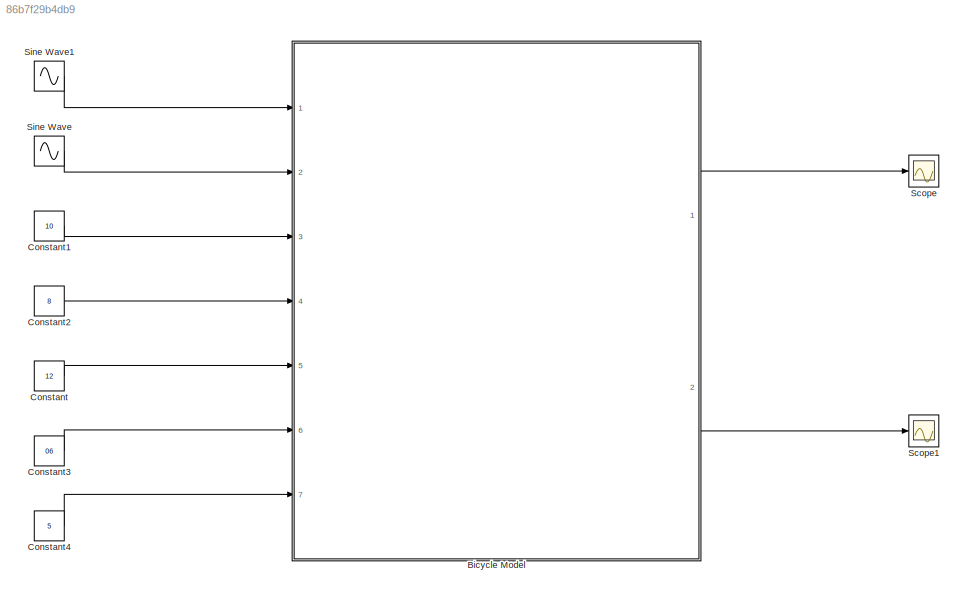
MODEL slx_86b7f29b4db9
KIND model
CONFIG AbsTol = auto
CONFIG FixedStep = 0.001
CONFIG MaxStep = auto
CONFIG MinStep = auto
CONFIG RelTol = 1e-3
CONFIG SampleTimeConstraint = Unconstrained
CONFIG Solver = FixedStepAuto
CONFIG SolverMode = Auto
CONFIG SolverName = FixedStepAuto
CONFIG StartTime = 0.0
CONFIG StopTime = 1
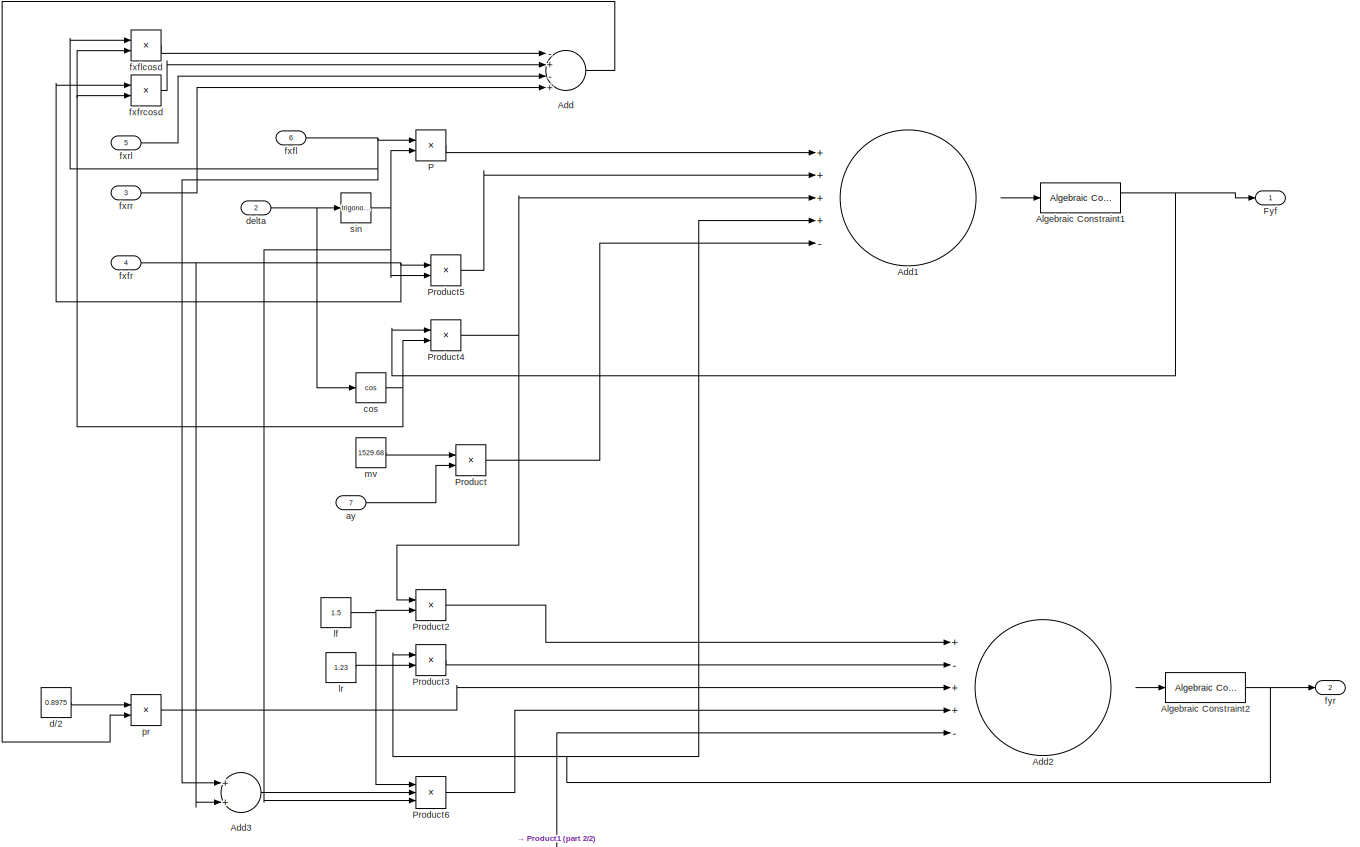
[diagram: Bicycle Model - part 1/2, most of the canvas]
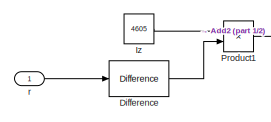
[diagram: Bicycle Model - part 2/2, bottom left region]
BLOCK [SubSystem] Bicycle Model
  Ports = [7, 2]
  RequestExecContextInheritance = off
  Variant = off
BLOCK [Sum] Bicycle Model/Add
  InputSameDT = off
  Inputs = -+-+
  OutDataTypeStr = Inherit: Inherit via internal rule
  Ports = [4, 1]
  SaturateOnIntegerOverflow = off
BLOCK [Sum] Bicycle Model/Add1
  InputSameDT = off
  Inputs = ++++-
  OutDataTypeStr = Inherit: Inherit via internal rule
  Ports = [5, 1]
  SaturateOnIntegerOverflow = off
BLOCK [Sum] Bicycle Model/Add2
  InputSameDT = off
  Inputs = +-++-
  OutDataTypeStr = Inherit: Inherit via internal rule
  Ports = [5, 1]
  SaturateOnIntegerOverflow = off
BLOCK [Sum] Bicycle Model/Add3
  InputSameDT = off
  OutDataTypeStr = Inherit: Inherit via internal rule
  Ports = [2, 1]
  SaturateOnIntegerOverflow = off
BLOCK [Reference] Bicycle Model/Algebraic Constraint1  REF=simulink/Math
Operations/Algebraic Constraint
  Ports = [1, 1]
  SourceBlock = simulink/Math\nOperations/Algebraic Constraint
  SourceType = Algebraic Constraint
BLOCK [Reference] Bicycle Model/Algebraic Constraint2  REF=simulink/Math
Operations/Algebraic Constraint
  Ports = [1, 1]
  SourceBlock = simulink/Math\nOperations/Algebraic Constraint
  SourceType = Algebraic Constraint
BLOCK [Reference] Bicycle Model/Difference  REF=simulink/Discrete/Difference
  Ports = [1, 1]
  SourceBlock = simulink/Discrete/Difference
  SourceType = Difference
BLOCK [Outport] Bicycle Model/Fyf
  IconDisplay = Port number
BLOCK [Constant] Bicycle Model/Iz
  Value = 4605
BLOCK [Product] Bicycle Model/P
  InputSameDT = off
  OutDataTypeStr = Inherit: Inherit via internal rule
  Ports = [2, 1]
  RndMeth = Floor
  SaturateOnIntegerOverflow = off
BLOCK [Product] Bicycle Model/Product
  InputSameDT = off
  OutDataTypeStr = Inherit: Inherit via internal rule
  Ports = [2, 1]
  RndMeth = Floor
  SaturateOnIntegerOverflow = off
BLOCK [Product] Bicycle Model/Product1
  InputSameDT = off
  OutDataTypeStr = Inherit: Inherit via internal rule
  Ports = [2, 1]
  RndMeth = Floor
  SaturateOnIntegerOverflow = off
BLOCK [Product] Bicycle Model/Product2
  InputSameDT = off
  OutDataTypeStr = Inherit: Inherit via internal rule
  Ports = [2, 1]
  RndMeth = Floor
  SaturateOnIntegerOverflow = off
BLOCK [Product] Bicycle Model/Product3
  InputSameDT = off
  OutDataTypeStr = Inherit: Inherit via internal rule
  Ports = [2, 1]
  RndMeth = Floor
  SaturateOnIntegerOverflow = off
BLOCK [Product] Bicycle Model/Product4
  InputSameDT = off
  OutDataTypeStr = Inherit: Inherit via internal rule
  Ports = [2, 1]
  RndMeth = Floor
  SaturateOnIntegerOverflow = off
BLOCK [Product] Bicycle Model/Product5
  InputSameDT = off
  OutDataTypeStr = Inherit: Inherit via internal rule
  Ports = [2, 1]
  RndMeth = Floor
  SaturateOnIntegerOverflow = off
BLOCK [Product] Bicycle Model/Product6
  InputSameDT = off
  Inputs = 3
  OutDataTypeStr = Inherit: Inherit via internal rule
  Ports = [3, 1]
  RndMeth = Floor
  SaturateOnIntegerOverflow = off
BLOCK [Inport] Bicycle Model/ay
  IconDisplay = Port number
  Port = 7
BLOCK [Trigonometry] Bicycle Model/cos
  Operator = cos
  Ports = [1, 1]
BLOCK [Constant] Bicycle Model/d//2
  Value = 0.8975
BLOCK [Inport] Bicycle Model/delta
  IconDisplay = Port number
  Port = 2
BLOCK [Inport] Bicycle Model/fxfl
  IconDisplay = Port number
  Port = 6
BLOCK [Product] Bicycle Model/fxflcosd
  InputSameDT = off
  OutDataTypeStr = Inherit: Inherit via internal rule
  Ports = [2, 1]
  RndMeth = Floor
  SaturateOnIntegerOverflow = off
BLOCK [Inport] Bicycle Model/fxfr
  IconDisplay = Port number
  Port = 4
BLOCK [Product] Bicycle Model/fxfrcosd
  InputSameDT = off
  OutDataTypeStr = Inherit: Inherit via internal rule
  Ports = [2, 1]
  RndMeth = Floor
  SaturateOnIntegerOverflow = off
BLOCK [Inport] Bicycle Model/fxrl
  IconDisplay = Port number
  Port = 5
BLOCK [Inport] Bicycle Model/fxrr
  IconDisplay = Port number
  Port = 3
BLOCK [Outport] Bicycle Model/fyr
  IconDisplay = Port number
  Port = 2
BLOCK [Constant] Bicycle Model/lf
  Value = 1.5
BLOCK [Constant] Bicycle Model/lr
  Value = 1.23
BLOCK [Constant] Bicycle Model/mv
  Value = 1529.68
BLOCK [Product] Bicycle Model/pr
  InputSameDT = off
  OutDataTypeStr = Inherit: Inherit via internal rule
  Ports = [2, 1]
  RndMeth = Floor
  SaturateOnIntegerOverflow = off
BLOCK [Inport] Bicycle Model/r
  IconDisplay = Port number
BLOCK [Trigonometry] Bicycle Model/sin
  Ports = [1, 1]
BLOCK [Constant] Constant
  Value = 12
BLOCK [Constant] Constant1
  Value = 10
BLOCK [Constant] Constant2
  Value = 8
BLOCK [Constant] Constant3
  Value = 06
BLOCK [Constant] Constant4
  Value = 5
BLOCK [Scope] Scope
  Ports = [1]
  ScopeSpecificationString = Simulink.scopes.TimeScopeBlockCfg('CurrentConfiguration', extmgr.ConfigurationSet(extmgr.Configuration('Core','General UI',true),extmgr.Configuration('Core','Source UI',true),extmgr.Configuration('Sources','WiredSimulink',true),extmgr.Configuration('Visuals','Time Domain',true,'SerializedDisplays',{struct('MinYLimReal','3083.71232','MaxYLimReal','6706.41327','YLabelReal','','MinYLimMag','3083.7123...<+1357ch>
BLOCK [Scope] Scope1
  Ports = [1]
  ScopeSpecificationString = Simulink.scopes.TimeScopeBlockCfg('CurrentConfiguration', extmgr.ConfigurationSet(extmgr.Configuration('Core','General UI',true),extmgr.Configuration('Core','Source UI',true),extmgr.Configuration('Sources','WiredSimulink',true,'DataLoggingVariableName','ScopeData1'),extmgr.Configuration('Visuals','Time Domain',true,'SerializedDisplays',{struct('MinYLimReal','4194.02132','MaxYLimReal','4210.5116','...<+1420ch>
BLOCK [Sin] Sine Wave
  Frequency = 2
  Ports = [0, 1]
BLOCK [Sin] Sine Wave1
  Frequency = 4
  Ports = [0, 1]
LINE Bicycle Model/Add1:1 -> Bicycle Model/Algebraic Constraint1:1
LINE Bicycle Model/Add2:1 -> Bicycle Model/Algebraic Constraint2:1
LINE Bicycle Model/Add3:1 -> Bicycle Model/Product6:2
LINE Bicycle Model/Add:1 -> Bicycle Model/pr:2
NET Bicycle Model/Algebraic Constraint1:1 -> Bicycle Model/Fyf:1, Bicycle Model/Product4:1
NET Bicycle Model/Algebraic Constraint2:1 -> Bicycle Model/Add1:4, Bicycle Model/Product3:1, Bicycle Model/fyr:1
LINE Bicycle Model/Difference:1 -> Bicycle Model/Product1:2
LINE Bicycle Model/Iz:1 -> Bicycle Model/Product1:1
LINE Bicycle Model/P:1 -> Bicycle Model/Add1:1
LINE Bicycle Model/Product1:1 -> Bicycle Model/Add2:5
LINE Bicycle Model/Product2:1 -> Bicycle Model/Add2:1
LINE Bicycle Model/Product3:1 -> Bicycle Model/Add2:2
NET Bicycle Model/Product4:1 -> Bicycle Model/Add1:3, Bicycle Model/Product2:1
LINE Bicycle Model/Product5:1 -> Bicycle Model/Add1:2
LINE Bicycle Model/Product6:1 -> Bicycle Model/Add2:4
LINE Bicycle Model/Product:1 -> Bicycle Model/Add1:5
LINE Bicycle Model/ay:1 -> Bicycle Model/Product:2
NET Bicycle Model/cos:1 -> Bicycle Model/Product4:2, Bicycle Model/fxflcosd:2, Bicycle Model/fxfrcosd:2
LINE Bicycle Model/d//2:1 -> Bicycle Model/pr:1
NET Bicycle Model/delta:1 -> Bicycle Model/cos:1, Bicycle Model/sin:1
NET Bicycle Model/fxfl:1 -> Bicycle Model/Add3:1, Bicycle Model/P:1, Bicycle Model/fxflcosd:1
LINE Bicycle Model/fxflcosd:1 -> Bicycle Model/Add:1
NET Bicycle Model/fxfr:1 -> Bicycle Model/Add3:2, Bicycle Model/Product5:1, Bicycle Model/fxfrcosd:1
LINE Bicycle Model/fxfrcosd:1 -> Bicycle Model/Add:2
LINE Bicycle Model/fxrl:1 -> Bicycle Model/Add:3
LINE Bicycle Model/fxrr:1 -> Bicycle Model/Add:4
NET Bicycle Model/lf:1 -> Bicycle Model/Product2:2, Bicycle Model/Product6:1
LINE Bicycle Model/lr:1 -> Bicycle Model/Product3:2
LINE Bicycle Model/mv:1 -> Bicycle Model/Product:1
LINE Bicycle Model/pr:1 -> Bicycle Model/Add2:3
LINE Bicycle Model/r:1 -> Bicycle Model/Difference:1
NET Bicycle Model/sin:1 -> Bicycle Model/P:2, Bicycle Model/Product5:2, Bicycle Model/Product6:3
LINE Bicycle Model:1 -> Scope:1
LINE Bicycle Model:2 -> Scope1:1
LINE Constant1:1 -> Bicycle Model:3
LINE Constant2:1 -> Bicycle Model:4
LINE Constant3:1 -> Bicycle Model:6
LINE Constant4:1 -> Bicycle Model:7
LINE Constant:1 -> Bicycle Model:5
LINE Sine Wave1:1 -> Bicycle Model:1
LINE Sine Wave:1 -> Bicycle Model:2
note: NET lines group one-source signal fan-out (src -> all destinations, sorted); 1:1 wires keep LINE
